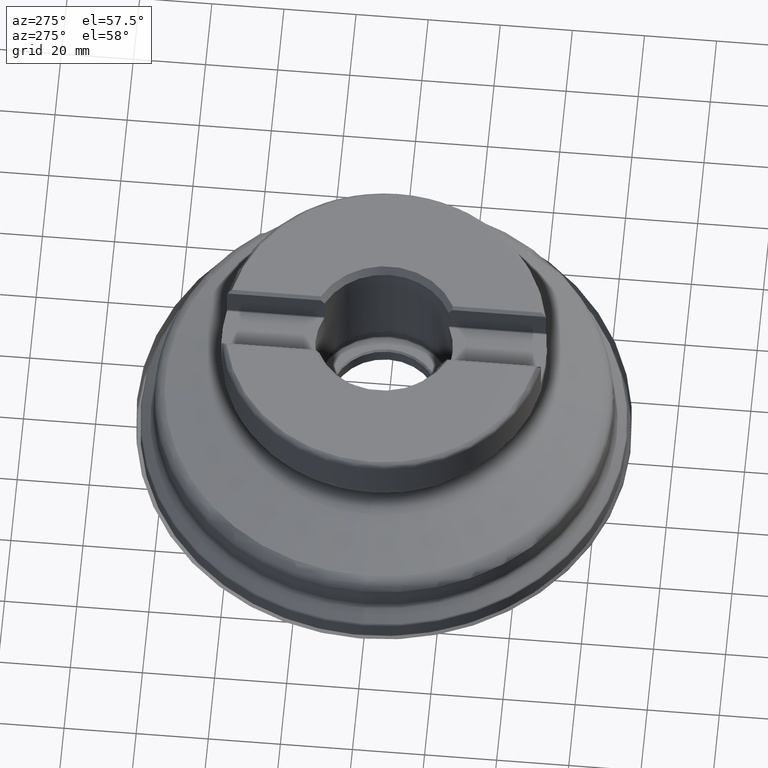
[diagram: clean part render]
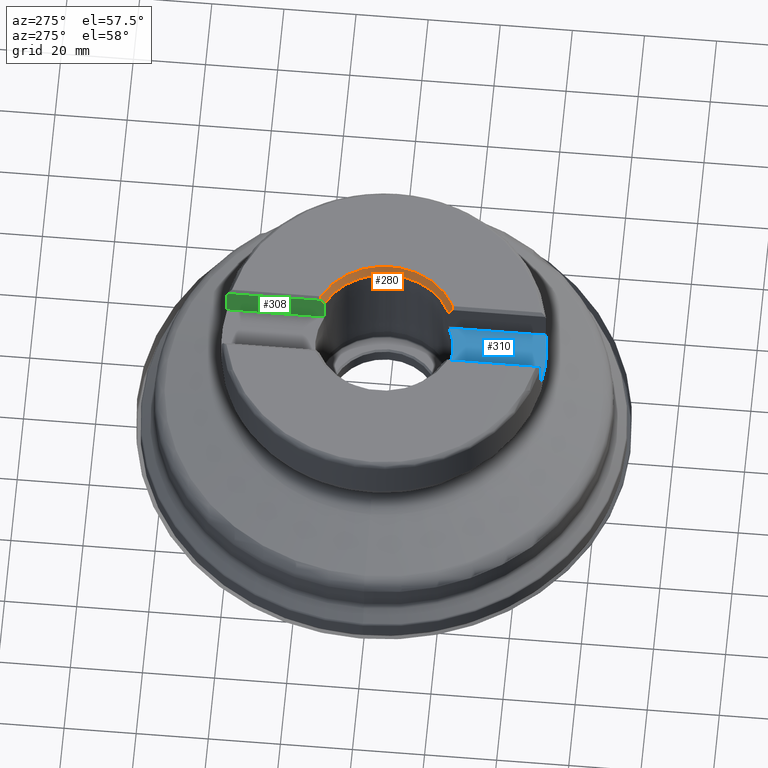
[diagram: same view with three faces highlighted in distinct colors, each labeled with its STEP entity id]
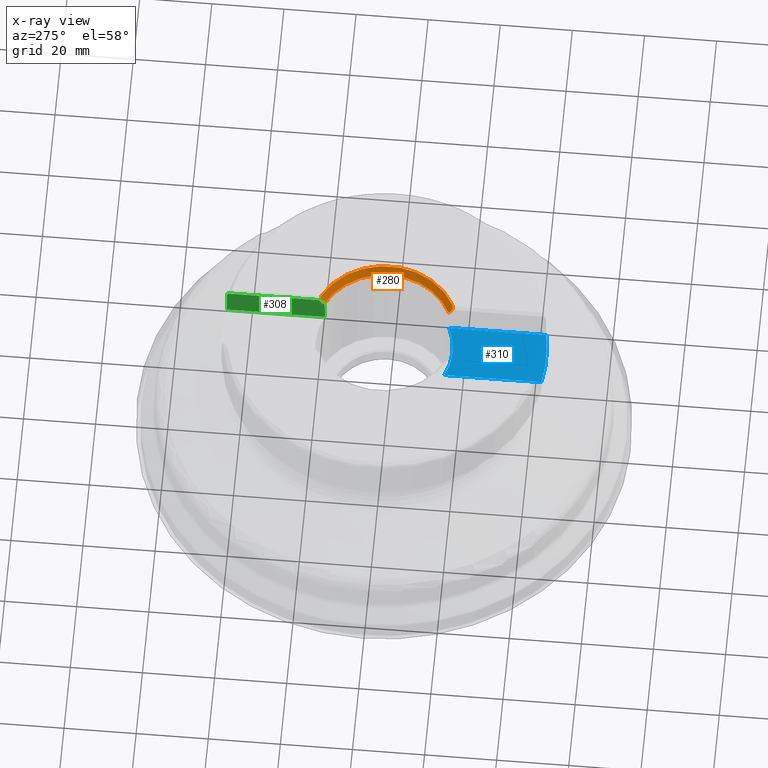
[diagram: x-ray of the same camera — body ghosted, the three highlighted faces saturated]
A machine part, auxiliary view with three faces highlighted in distinct colors.
The next image is the same camera in x-ray (body ghosted, the three faces saturated) — at least one of them is partly hidden behind the body in this view.
Their STEP definitions:

[orange] entity #280 — the highlighted conical surface has half-angle 30 deg.
#244=CONICAL_SURFACE('',#1114,19.05,29.9999999999999);
#254=FACE_OUTER_BOUND('',#465,.T.);
#274=ELLIPSE('',#1110,32.2788465987711,18.6362007729311);
#275=ELLIPSE('',#1112,32.2788465987711,18.6362007729311);
#280=ADVANCED_FACE('',(#254),#244,.F.);
#465=EDGE_LOOP('',(#585,#586,#587,#588,#589,#590));
#585=ORIENTED_EDGE('',*,*,#892,.T.);
#586=ORIENTED_EDGE('',*,*,#893,.T.);
#587=ORIENTED_EDGE('',*,*,#894,.T.);
#588=ORIENTED_EDGE('',*,*,#895,.T.);
#589=ORIENTED_EDGE('',*,*,#896,.T.);
#590=ORIENTED_EDGE('',*,*,#897,.F.);
#803=VERTEX_POINT('',#1599);
#804=VERTEX_POINT('',#1600);
#805=VERTEX_POINT('',#1602);
#806=VERTEX_POINT('',#1604);
#807=VERTEX_POINT('',#1606);
#808=VERTEX_POINT('',#1611);
#892=EDGE_CURVE('',#803,#804,#1069,.T.);
#893=EDGE_CURVE('',#804,#805,#274,.T.);
#894=EDGE_CURVE('',#805,#806,#1001,.T.);
#895=EDGE_CURVE('',#806,#807,#275,.T.);
#896=EDGE_CURVE('',#807,#808,#1070,.T.);
#897=EDGE_CURVE('',#803,#808,#1002,.T.);
#1001=CIRCLE('',#1111,20.3779056191361);
#1002=CIRCLE('',#1113,19.05);
#1069=B_SPLINE_CURVE_WITH_KNOTS('',3,(#1595,#1596,#1597,#1598),
 .UNSPECIFIED.,.F.,.F.,(4,4),(0.,1.),.UNSPECIFIED.);
#1070=B_SPLINE_CURVE_WITH_KNOTS('',3,(#1607,#1608,#1609,#1610),
 .UNSPECIFIED.,.F.,.F.,(4,4),(0.,1.),.UNSPECIFIED.);
#1110=AXIS2_PLACEMENT_3D('',#1601,#1228,#1229);
#1111=AXIS2_PLACEMENT_3D('',#1603,#1230,#1231);
#1112=AXIS2_PLACEMENT_3D('',#1605,#1232,#1233);
#1113=AXIS2_PLACEMENT_3D('',#1612,#1234,#1235);
#1114=AXIS2_PLACEMENT_3D('',#1613,#1236,#1237);
#1228=DIRECTION('',(-0.707106781186548,3.17943722883465E-15,0.707106781186547));
#1229=DIRECTION('',(0.707106781186547,-1.29532627841411E-15,0.707106781186548));
#1230=DIRECTION('',(1.17145536458253E-15,1.33226762955019E-15,1.));
#1231=DIRECTION('',(-1.,3.1641356201817E-15,1.02153195234026E-15));
#1232=DIRECTION('',(-0.707106781186548,3.17943722883465E-15,0.707106781186547));
#1233=DIRECTION('',(0.707106781186547,-1.29532627841411E-15,0.707106781186548));
#1234=DIRECTION('',(1.17145536458253E-15,1.33226762955019E-15,1.));
#1235=DIRECTION('',(1.,-3.1641356201817E-15,-1.09273919746571E-15));
#1236=DIRECTION('',(1.17145536458253E-15,1.33226762955019E-15,1.));
#1237=DIRECTION('',(-1.,3.1641356201817E-15,1.22163569929343E-15));
#1595=CARTESIAN_POINT('',(8.14000000000001,-17.2233243016555,54.85));
#1596=CARTESIAN_POINT('',(8.14000000000001,-17.5421798490933,55.3493172887503));
#1597=CARTESIAN_POINT('',(8.14,-17.859880578279,55.8493513685116));
#1598=CARTESIAN_POINT('',(8.14,-18.1765912063892,56.35));
#1599=CARTESIAN_POINT('',(8.14000000000001,-17.2233243016555,54.85));
#1600=CARTESIAN_POINT('',(8.14,-18.1765912063892,56.35));
#1601=CARTESIAN_POINT('',(13.1777839420937,4.00886618296355E-14,61.3877839420936));
#1602=CARTESIAN_POINT('',(8.94,-18.3121663770953,57.15));
#1603=CARTESIAN_POINT('',(6.69486740858915E-14,7.61390950287932E-14,57.15));
#1604=CARTESIAN_POINT('',(8.94000000000012,18.3121663770954,57.15));
#1605=CARTESIAN_POINT('',(13.1777839420937,4.00886618296355E-14,61.3877839420936));
#1606=CARTESIAN_POINT('',(8.14000000000012,18.1765912063893,56.35));
#1607=CARTESIAN_POINT('',(8.14000000000012,18.1765912063893,56.35));
#1608=CARTESIAN_POINT('',(8.14000000000012,17.8598744993872,55.8493417591438));
#1609=CARTESIAN_POINT('',(8.14000000000012,17.5421734077317,55.34930720179));
#1610=CARTESIAN_POINT('',(8.14000000000012,17.2233243016556,54.85));
#1611=CARTESIAN_POINT('',(8.14000000000011,17.2233243016556,54.85));
#1612=CARTESIAN_POINT('',(6.42543267473517E-14,7.30748794808278E-14,54.85));
#1613=CARTESIAN_POINT('',(6.42543267473517E-14,7.30748794808278E-14,54.85));

[blue] entity #310 — the highlighted planar face has unit normal (0, 0, 1).
#162=PLANE('',#1176);
#198=LINE('',#2110,#230);
#199=LINE('',#2111,#231);
#230=VECTOR('',#1382,1.);
#231=VECTOR('',#1383,1.);
#263=FACE_OUTER_BOUND('',#516,.T.);
#310=ADVANCED_FACE('',(#263),#162,.T.);
#516=EDGE_LOOP('',(#697,#698,#699,#700));
#697=ORIENTED_EDGE('',*,*,#920,.T.);
#698=ORIENTED_EDGE('',*,*,#975,.T.);
#699=ORIENTED_EDGE('',*,*,#935,.T.);
#700=ORIENTED_EDGE('',*,*,#976,.T.);
#830=VERTEX_POINT('',#1741);
#831=VERTEX_POINT('',#1743);
#842=VERTEX_POINT('',#1859);
#843=VERTEX_POINT('',#1861);
#920=EDGE_CURVE('',#831,#830,#1010,.T.);
#935=EDGE_CURVE('',#843,#842,#1014,.T.);
#975=EDGE_CURVE('',#830,#843,#198,.T.);
#976=EDGE_CURVE('',#842,#831,#199,.T.);
#1010=CIRCLE('',#1127,45.);
#1014=CIRCLE('',#1132,19.05);
#1127=AXIS2_PLACEMENT_3D('',#1742,#1264,#1265);
#1132=AXIS2_PLACEMENT_3D('',#1860,#1279,#1280);
#1176=AXIS2_PLACEMENT_3D('',#2112,#1384,#1385);
#1264=DIRECTION('',(1.17145536458253E-15,1.33226762955019E-15,1.));
#1265=DIRECTION('',(-1.,3.1641356201817E-15,1.2335811384724E-15));
#1279=DIRECTION('',(-1.17145536458253E-15,-1.33226762955019E-15,-1.));
#1280=DIRECTION('',(-1.,3.1641356201817E-15,1.09273919746571E-15));
#1382=DIRECTION('',(3.16413562018169E-15,1.,-1.33226762955019E-15));
#1383=DIRECTION('',(-3.16413562018169E-15,-1.,1.33226762955019E-15));
#1384=DIRECTION('',(1.17145536458253E-15,1.33226762955019E-15,1.));
#1385=DIRECTION('',(-1.,3.1641356201817E-15,1.17267306976032E-15));
#1741=CARTESIAN_POINT('',(7.73999999999991,-44.3293627294595,47.6200000000001));
#1742=CARTESIAN_POINT('',(5.578470446142E-14,6.344258451918E-14,47.62));
#1743=CARTESIAN_POINT('',(-7.74000000000008,-44.3293627294595,47.6200000000001));
#1859=CARTESIAN_POINT('',(-7.73999999999999,-17.4067486912403,47.62));
#1860=CARTESIAN_POINT('',(5.578470446142E-14,6.344258451918E-14,47.62));
#1861=CARTESIAN_POINT('',(7.74,-17.4067486912404,47.62));
#2110=CARTESIAN_POINT('',(7.74,-17.2233243016555,47.62));
#2111=CARTESIAN_POINT('',(-7.74000000000008,-44.2576592241387,47.6200000000001));
#2112=CARTESIAN_POINT('',(8.14000000000026,65.,47.6199999999999));

[green] entity #308 — the highlighted planar face has unit normal (-1, 0, 0).
#160=PLANE('',#1174);
#180=LINE('',#1721,#212);
#184=LINE('',#1802,#216);
#194=LINE('',#2104,#226);
#195=LINE('',#2105,#227);
#212=VECTOR('',#1262,1.);
#216=VECTOR('',#1274,1.);
#226=VECTOR('',#1374,1.);
#227=VECTOR('',#1375,1.);
#261=FACE_OUTER_BOUND('',#514,.T.);
#308=ADVANCED_FACE('',(#261),#160,.T.);
#514=EDGE_LOOP('',(#687,#688,#689,#690,#691,#692));
#687=ORIENTED_EDGE('',*,*,#917,.T.);
#688=ORIENTED_EDGE('',*,*,#971,.T.);
#689=ORIENTED_EDGE('',*,*,#928,.T.);
#690=ORIENTED_EDGE('',*,*,#896,.F.);
#691=ORIENTED_EDGE('',*,*,#972,.T.);
#692=ORIENTED_EDGE('',*,*,#908,.F.);
#807=VERTEX_POINT('',#1606);
#808=VERTEX_POINT('',#1611);
#819=VERTEX_POINT('',#1656);
#820=VERTEX_POINT('',#1667);
#828=VERTEX_POINT('',#1722);
#837=VERTEX_POINT('',#1803);
#896=EDGE_CURVE('',#807,#808,#1070,.T.);
#908=EDGE_CURVE('',#819,#820,#1075,.T.);
#917=EDGE_CURVE('',#819,#828,#180,.T.);
#928=EDGE_CURVE('',#837,#808,#184,.T.);
#971=EDGE_CURVE('',#828,#837,#194,.T.);
#972=EDGE_CURVE('',#807,#820,#195,.T.);
#1070=B_SPLINE_CURVE_WITH_KNOTS('',3,(#1607,#1608,#1609,#1610),
 .UNSPECIFIED.,.F.,.F.,(4,4),(0.,1.),.UNSPECIFIED.);
#1075=B_SPLINE_CURVE_WITH_KNOTS('',3,(#1657,#1658,#1659,#1660,#1661,#1662,
#1663,#1664,#1665,#1666),.UNSPECIFIED.,.F.,.F.,(4,3,3,4),(0.,0.41169919447302,
0.790844212136042,1.),.UNSPECIFIED.);
#1174=AXIS2_PLACEMENT_3D('',#2106,#1376,#1377);
#1262=DIRECTION('',(-1.17145536458253E-15,-1.33226762955019E-15,-1.));
#1274=DIRECTION('',(1.17145536458253E-15,1.33226762955019E-15,1.));
#1374=DIRECTION('',(-3.16413562018169E-15,-1.,1.33226762955019E-15));
#1375=DIRECTION('',(3.16413562018169E-15,1.,-1.33226762955019E-15));
#1376=DIRECTION('',(-1.,3.1641356201817E-15,9.61886478612074E-16));
#1377=DIRECTION('',(-9.61036805691151E-16,-1.33226762955019E-15,-1.));
#1606=CARTESIAN_POINT('',(8.14000000000012,18.1765912063893,56.35));
#1607=CARTESIAN_POINT('',(8.14000000000012,18.1765912063893,56.35));
#1608=CARTESIAN_POINT('',(8.14000000000012,17.8598744993872,55.8493417591438));
#1609=CARTESIAN_POINT('',(8.14000000000012,17.5421734077317,55.34930720179));
#1610=CARTESIAN_POINT('',(8.14000000000012,17.2233243016556,54.85));
#1611=CARTESIAN_POINT('',(8.14000000000011,17.2233243016556,54.85));
#1656=CARTESIAN_POINT('',(8.1400000000002,44.2576592241389,55.3499999999999));
#1657=CARTESIAN_POINT('',(8.1400000000002,44.2576592241389,55.3499999999999));
#1658=CARTESIAN_POINT('',(8.1400000000002,44.2576592241389,55.4931508768422));
#1659=CARTESIAN_POINT('',(8.1400000000002,44.2418402515146,55.6371438965346));
#1660=CARTESIAN_POINT('',(8.1400000000002,44.210795939529,55.7768880349951));
#1661=CARTESIAN_POINT('',(8.1400000000002,44.1819917074137,55.9065485861076));
#1662=CARTESIAN_POINT('',(8.1400000000002,44.1398026365069,56.0339176834881));
#1663=CARTESIAN_POINT('',(8.1400000000002,44.0855767465035,56.1551657562805));
#1664=CARTESIAN_POINT('',(8.1400000000002,44.0557496599618,56.2218585622442));
#1665=CARTESIAN_POINT('',(8.1400000000002,44.0221796996371,56.2869983753428));
#1666=CARTESIAN_POINT('',(8.1400000000002,43.985188068836,56.3500000000009));
#1667=CARTESIAN_POINT('',(8.1400000000002,43.985188068836,56.3500000000009));
#1721=CARTESIAN_POINT('',(8.1400000000002,44.2576592241389,57.3499999999999));
#1722=CARTESIAN_POINT('',(8.14000000000019,44.2576592241388,48.0199999999999));
#1802=CARTESIAN_POINT('',(8.14000000000012,17.2233243016556,57.35));
#1803=CARTESIAN_POINT('',(8.14000000000011,17.2233243016556,48.02));
#2104=CARTESIAN_POINT('',(8.14000000000011,17.2233243016556,48.02));
#2105=CARTESIAN_POINT('',(8.14000000000027,65.,56.3499999999999));
#2106=CARTESIAN_POINT('',(8.14000000000028,65.0000000000001,64.1751624511799));